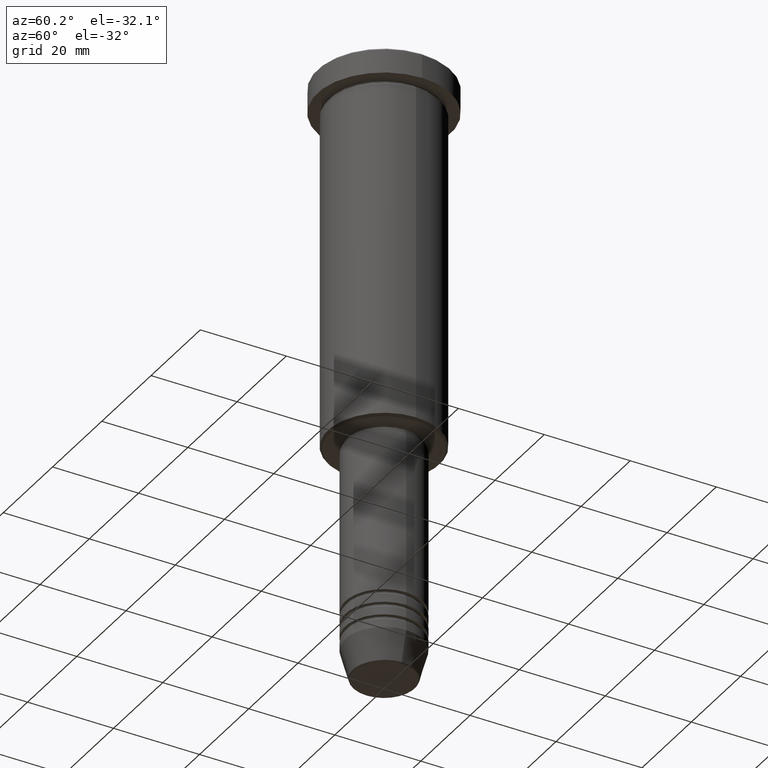
[diagram: clean part render]
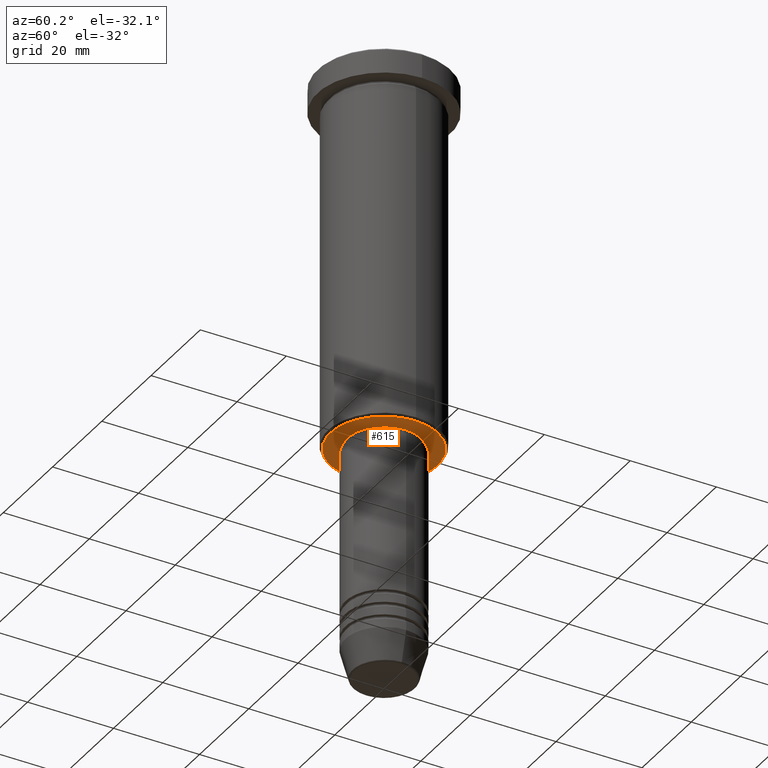
[diagram: same view with one face highlighted and labeled with its STEP entity id]
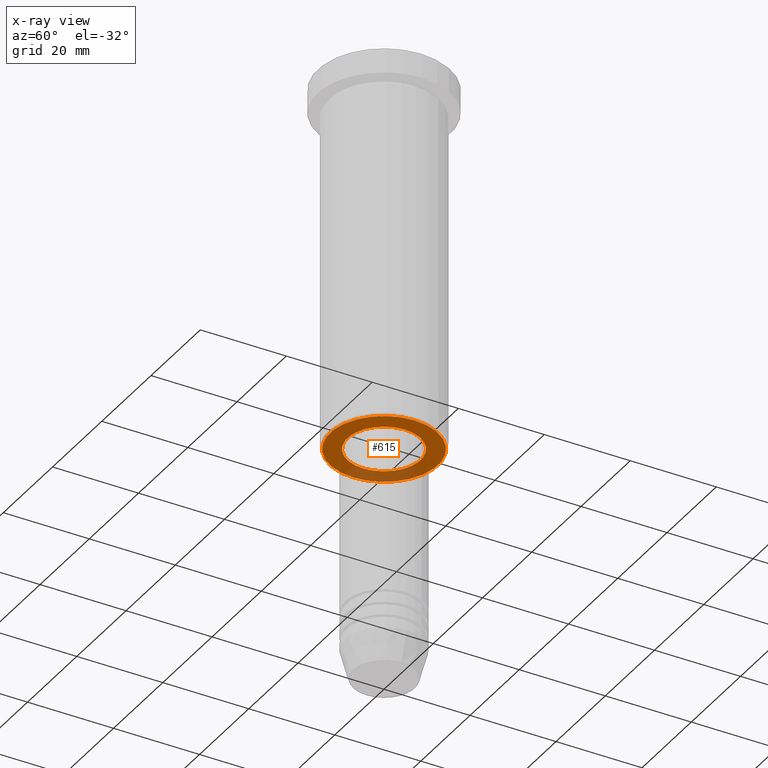
[diagram: x-ray of the same camera — body ghosted, the highlighted face saturated]
A machine part, auxiliary view. The second image highlights one B-rep face of the part: STEP entity #615.
The next image is the same camera in x-ray: the body ghosted, the highlighted face saturated — about 23% of this face is hidden behind the body in this view.
In plain terms, the highlighted planar face has unit normal (0, 0, -1).
Its self-contained STEP definition (entity closure, byte-faithful):
#13 = VERTEX_POINT ( 'NONE', #392 ) ;
#126 = CIRCLE ( 'NONE', #589, 12.49999999999996980 ) ;
#136 = VERTEX_POINT ( 'NONE', #537 ) ;
#144 = EDGE_LOOP ( 'NONE', ( #503, #360 ) ) ;
#150 = CIRCLE ( 'NONE', #325, 8.499999999999998224 ) ;
#173 = DIRECTION ( 'NONE',  ( 1.000000000000000000, 0.000000000000000000, 0.000000000000000000 ) ) ;
#186 = CIRCLE ( 'NONE', #851, 12.49999999999996980 ) ;
#278 = CARTESIAN_POINT ( 'NONE',  ( 0.000000000000000000, 13.00000000000000000, -86.00000000000000000 ) ) ;
#317 = ORIENTED_EDGE ( 'NONE', *, *, #1161, .T. ) ;
#325 = AXIS2_PLACEMENT_3D ( 'NONE', #982, #1160, #173 ) ;
#360 = ORIENTED_EDGE ( 'NONE', *, *, #854, .T. ) ;
#365 = AXIS2_PLACEMENT_3D ( 'NONE', #602, #964, #1145 ) ;
#373 = CARTESIAN_POINT ( 'NONE',  ( -12.49999999999996980, 1.561424668912873336E-15, -86.00000000000000000 ) ) ;
#392 = CARTESIAN_POINT ( 'NONE',  ( -8.499999999999998224, 1.040949779275249943E-15, -86.00000000000000000 ) ) ;
#423 = AXIS2_PLACEMENT_3D ( 'NONE', #278, #824, #463 ) ;
#452 = EDGE_CURVE ( 'NONE', #136, #842, #126, .T. ) ;
#460 = FACE_OUTER_BOUND ( 'NONE', #144, .T. ) ;
#463 = DIRECTION ( 'NONE',  ( -1.000000000000000000, 0.000000000000000000, -0.000000000000000000 ) ) ;
#467 = DIRECTION ( 'NONE',  ( 0.000000000000000000, 0.000000000000000000, -1.000000000000000000 ) ) ;
#503 = ORIENTED_EDGE ( 'NONE', *, *, #452, .T. ) ;
#537 = CARTESIAN_POINT ( 'NONE',  ( 12.49999999999996980, 0.000000000000000000, -86.00000000000000000 ) ) ;
#575 = EDGE_LOOP ( 'NONE', ( #317, #1130 ) ) ;
#589 = AXIS2_PLACEMENT_3D ( 'NONE', #617, #975, #1158 ) ;
#602 = CARTESIAN_POINT ( 'NONE',  ( 0.000000000000000000, 0.000000000000000000, -86.00000000000000000 ) ) ;
#615 = ADVANCED_FACE ( 'NONE', ( #460, #1175 ), #1091, .T. ) ;
#617 = CARTESIAN_POINT ( 'NONE',  ( 0.000000000000000000, 0.000000000000000000, -86.00000000000000000 ) ) ;
#776 = EDGE_CURVE ( 'NONE', #13, #802, #150, .T. ) ;
#802 = VERTEX_POINT ( 'NONE', #1072 ) ;
#824 = DIRECTION ( 'NONE',  ( 0.000000000000000000, 0.000000000000000000, -1.000000000000000000 ) ) ;
#842 = VERTEX_POINT ( 'NONE', #373 ) ;
#851 = AXIS2_PLACEMENT_3D ( 'NONE', #1156, #467, #898 ) ;
#854 = EDGE_CURVE ( 'NONE', #842, #136, #186, .T. ) ;
#873 = CIRCLE ( 'NONE', #365, 8.499999999999998224 ) ;
#898 = DIRECTION ( 'NONE',  ( -1.000000000000000000, 0.000000000000000000, 0.000000000000000000 ) ) ;
#964 = DIRECTION ( 'NONE',  ( -0.000000000000000000, -0.000000000000000000, 1.000000000000000000 ) ) ;
#975 = DIRECTION ( 'NONE',  ( 0.000000000000000000, 0.000000000000000000, -1.000000000000000000 ) ) ;
#982 = CARTESIAN_POINT ( 'NONE',  ( 0.000000000000000000, 0.000000000000000000, -86.00000000000000000 ) ) ;
#1072 = CARTESIAN_POINT ( 'NONE',  ( 8.499999999999998224, 0.000000000000000000, -86.00000000000000000 ) ) ;
#1091 = PLANE ( 'NONE',  #423 ) ;
#1130 = ORIENTED_EDGE ( 'NONE', *, *, #776, .T. ) ;
#1145 = DIRECTION ( 'NONE',  ( 1.000000000000000000, 0.000000000000000000, 0.000000000000000000 ) ) ;
#1156 = CARTESIAN_POINT ( 'NONE',  ( 0.000000000000000000, 0.000000000000000000, -86.00000000000000000 ) ) ;
#1158 = DIRECTION ( 'NONE',  ( -1.000000000000000000, 0.000000000000000000, 0.000000000000000000 ) ) ;
#1160 = DIRECTION ( 'NONE',  ( -0.000000000000000000, -0.000000000000000000, 1.000000000000000000 ) ) ;
#1161 = EDGE_CURVE ( 'NONE', #802, #13, #873, .T. ) ;
#1175 = FACE_BOUND ( 'NONE', #575, .T. ) ;